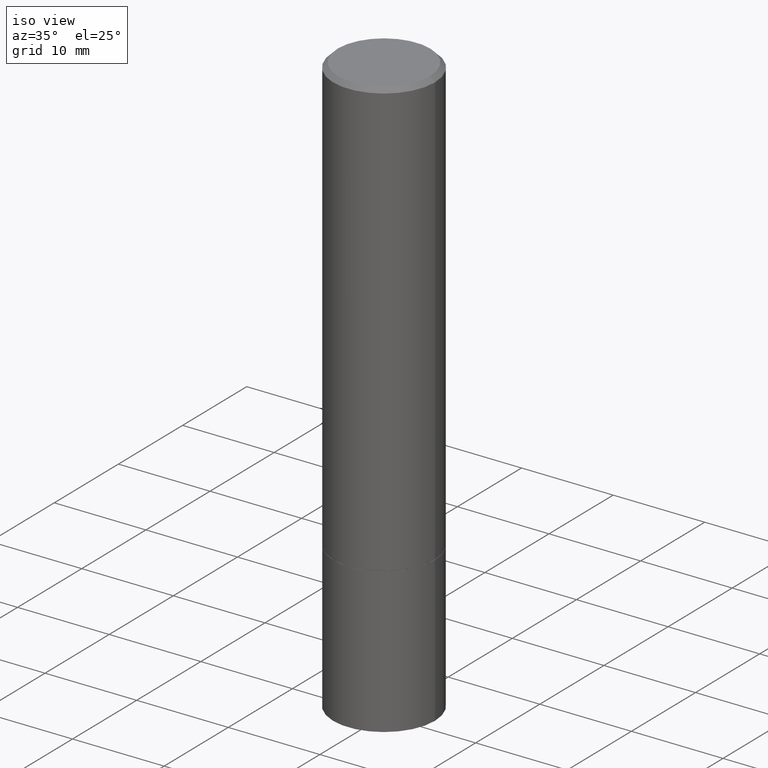
[diagram: clean part render]
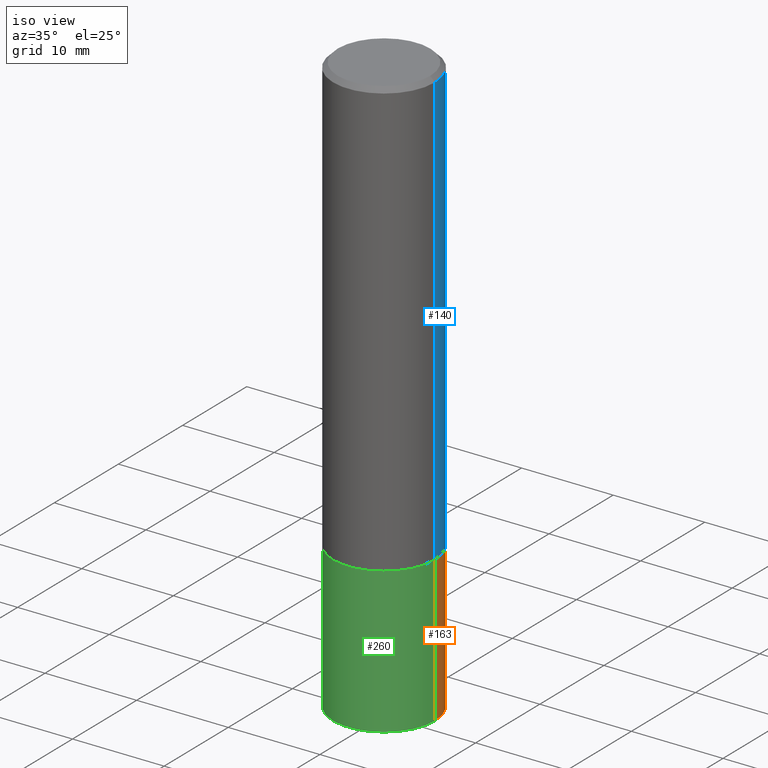
[diagram: same view with three faces highlighted in distinct colors, each labeled with its STEP entity id]
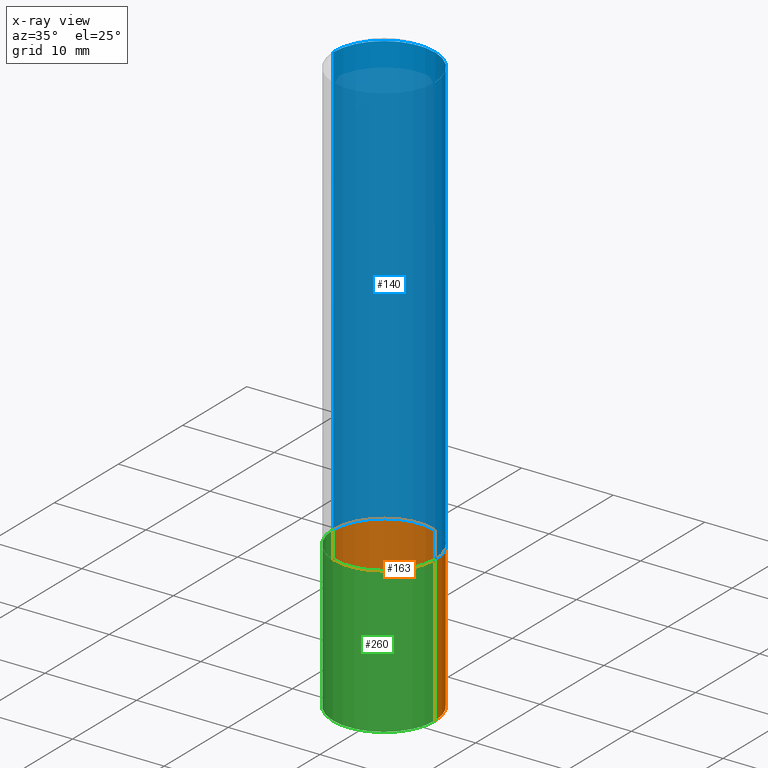
[diagram: x-ray of the same camera — body ghosted, the three highlighted faces saturated]
A machine part, iso view with three faces highlighted in distinct colors.
The next image is the same camera in x-ray (body ghosted, the three faces saturated) — at least one of them is partly hidden behind the body in this view.
Their STEP definitions:

[orange] entity #163 — the highlighted cylindrical surface (partial cylindrical patch) has radius 5.5562 mm, axis along (-0, 0, 1).
#11 = ORIENTED_EDGE ( 'NONE', *, *, #312, .F. ) ;
#15 = CIRCLE ( 'NONE', #309, 0.2187500000000000000 ) ;
#20 = EDGE_CURVE ( 'NONE', #350, #247, #361, .T. ) ;
#32 = EDGE_CURVE ( 'NONE', #320, #100, #130, .T. ) ;
#39 = CARTESIAN_POINT ( 'NONE',  ( 0.2187500000000000000, -1.025622643285173500E-14, -2.500000000000000000 ) ) ;
#46 = ORIENTED_EDGE ( 'NONE', *, *, #151, .T. ) ;
#57 = CYLINDRICAL_SURFACE ( 'NONE', #289, 0.2187500000000000000 ) ;
#58 = CARTESIAN_POINT ( 'NONE',  ( 0.000000000000000000, 0.000000000000000000, 0.000000000000000000 ) ) ;
#62 = CARTESIAN_POINT ( 'NONE',  ( 4.585254011597131119E-29, -6.546527510330898707E-15, -1.875000000000000000 ) ) ;
#65 = VECTOR ( 'NONE', #166, 39.37007874015748143 ) ;
#74 = CARTESIAN_POINT ( 'NONE',  ( 0.2187500000000000000, -1.527523085743870843E-15, 1.066663669705360885E-29 ) ) ;
#75 = ORIENTED_EDGE ( 'NONE', *, *, #20, .F. ) ;
#80 = DIRECTION ( 'NONE',  ( 1.000000000000000000, -6.982962677686266711E-15, 4.876176775795935232E-29 ) ) ;
#97 = VECTOR ( 'NONE', #161, 39.37007874015748143 ) ;
#100 = VERTEX_POINT ( 'NONE', #221 ) ;
#130 = LINE ( 'NONE', #326, #65 ) ;
#148 = AXIS2_PLACEMENT_3D ( 'NONE', #62, #196, #344 ) ;
#151 = EDGE_CURVE ( 'NONE', #350, #320, #15, .T. ) ;
#161 = DIRECTION ( 'NONE',  ( -2.445468806185136877E-29, 3.491481338843145188E-15, 1.000000000000000000 ) ) ;
#163 = ADVANCED_FACE ( 'NONE', ( #224 ), #57, .T. ) ;
#166 = DIRECTION ( 'NONE',  ( -2.445468806185136877E-29, 3.491481338843145188E-15, 1.000000000000000000 ) ) ;
#195 = CIRCLE ( 'NONE', #148, 0.2187500000000000000 ) ;
#196 = DIRECTION ( 'NONE',  ( -2.445468806185136597E-29, 3.491481338843145583E-15, 1.000000000000000000 ) ) ;
#200 = DIRECTION ( 'NONE',  ( -2.445468806185136597E-29, 3.491481338843145583E-15, 1.000000000000000000 ) ) ;
#221 = CARTESIAN_POINT ( 'NONE',  ( -0.2187500000000000000, -6.083303194244162668E-15, -1.875000000000000000 ) ) ;
#224 = FACE_OUTER_BOUND ( 'NONE', #241, .T. ) ;
#241 = EDGE_LOOP ( 'NONE', ( #46, #265, #11, #75 ) ) ;
#247 = VERTEX_POINT ( 'NONE', #281 ) ;
#265 = ORIENTED_EDGE ( 'NONE', *, *, #32, .T. ) ;
#281 = CARTESIAN_POINT ( 'NONE',  ( 0.2187500000000000000, -8.074050596074770339E-15, -1.875000000000000000 ) ) ;
#289 = AXIS2_PLACEMENT_3D ( 'NONE', #58, #335, #80 ) ;
#299 = CARTESIAN_POINT ( 'NONE',  ( 6.113672015462842613E-29, -8.728703347107864943E-15, -2.500000000000000000 ) ) ;
#307 = DIRECTION ( 'NONE',  ( 1.000000000000000000, -6.982962677686267499E-15, 0.000000000000000000 ) ) ;
#309 = AXIS2_PLACEMENT_3D ( 'NONE', #299, #200, #307 ) ;
#312 = EDGE_CURVE ( 'NONE', #247, #100, #195, .T. ) ;
#317 = CARTESIAN_POINT ( 'NONE',  ( -0.2187500000000000000, -6.083303194244162668E-15, -2.500000000000000000 ) ) ;
#320 = VERTEX_POINT ( 'NONE', #317 ) ;
#326 = CARTESIAN_POINT ( 'NONE',  ( -0.2187500000000000000, 1.554312234475219157E-15, -1.076017050993260622E-29 ) ) ;
#335 = DIRECTION ( 'NONE',  ( -2.445468806185136597E-29, 3.491481338843145583E-15, 1.000000000000000000 ) ) ;
#344 = DIRECTION ( 'NONE',  ( 1.000000000000000000, -6.982962677686267499E-15, 0.000000000000000000 ) ) ;
#350 = VERTEX_POINT ( 'NONE', #39 ) ;
#361 = LINE ( 'NONE', #74, #97 ) ;

[blue] entity #140 — the highlighted cylindrical surface (partial cylindrical patch) has radius 5.5562 mm, axis along (-0, 0, 1).
#17 = EDGE_LOOP ( 'NONE', ( #101, #233, #216, #96 ) ) ;
#44 = VERTEX_POINT ( 'NONE', #277 ) ;
#53 = CYLINDRICAL_SURFACE ( 'NONE', #283, 0.2187499999999998057 ) ;
#54 = DIRECTION ( 'NONE',  ( -2.445468806185136597E-29, 3.491481338843145583E-15, 1.000000000000000000 ) ) ;
#86 = DIRECTION ( 'NONE',  ( -2.445468806185136597E-29, 3.491481338843145583E-15, 1.000000000000000000 ) ) ;
#87 = EDGE_CURVE ( 'NONE', #105, #136, #304, .T. ) ;
#96 = ORIENTED_EDGE ( 'NONE', *, *, #87, .F. ) ;
#101 = ORIENTED_EDGE ( 'NONE', *, *, #296, .T. ) ;
#105 = VERTEX_POINT ( 'NONE', #185 ) ;
#113 = DIRECTION ( 'NONE',  ( -2.445468806185136597E-29, 3.491481338843145583E-15, 1.000000000000000000 ) ) ;
#120 = DIRECTION ( 'NONE',  ( -2.445468806185136877E-29, 3.491481338843145188E-15, 1.000000000000000000 ) ) ;
#122 = LINE ( 'NONE', #293, #321 ) ;
#133 = DIRECTION ( 'NONE',  ( 1.000000000000000000, -6.982962677686266711E-15, 4.876176775795936353E-29 ) ) ;
#136 = VERTEX_POINT ( 'NONE', #191 ) ;
#137 = VERTEX_POINT ( 'NONE', #303 ) ;
#138 = CARTESIAN_POINT ( 'NONE',  ( 4.582808542790945516E-29, -6.543036028992054911E-15, -1.874000000000000110 ) ) ;
#140 = ADVANCED_FACE ( 'NONE', ( #305 ), #53, .T. ) ;
#164 = CARTESIAN_POINT ( 'NONE',  ( 0.000000000000000000, 0.000000000000000000, 0.000000000000000000 ) ) ;
#185 = CARTESIAN_POINT ( 'NONE',  ( 0.2187499999999999445, -8.070559114735925754E-15, -1.874000000000000110 ) ) ;
#188 = AXIS2_PLACEMENT_3D ( 'NONE', #258, #113, #230 ) ;
#191 = CARTESIAN_POINT ( 'NONE',  ( 0.2187499999999997224, -1.570563563789383461E-15, -0.02000000000000005246 ) ) ;
#203 = DIRECTION ( 'NONE',  ( 1.000000000000000000, -6.982962677686269077E-15, 0.000000000000000000 ) ) ;
#216 = ORIENTED_EDGE ( 'NONE', *, *, #279, .F. ) ;
#230 = DIRECTION ( 'NONE',  ( 1.000000000000000000, -6.982962677686266711E-15, 0.000000000000000000 ) ) ;
#233 = ORIENTED_EDGE ( 'NONE', *, *, #360, .T. ) ;
#245 = DIRECTION ( 'NONE',  ( -2.445468806185136877E-29, 3.491481338843145188E-15, 1.000000000000000000 ) ) ;
#258 = CARTESIAN_POINT ( 'NONE',  ( 4.890937612370285420E-31, -6.982962677686308865E-17, -0.02000000000000005246 ) ) ;
#259 = AXIS2_PLACEMENT_3D ( 'NONE', #138, #86, #203 ) ;
#272 = CIRCLE ( 'NONE', #259, 0.2187499999999999445 ) ;
#277 = CARTESIAN_POINT ( 'NONE',  ( -0.2187499999999997224, 1.457693458967005770E-15, -0.02000000000000005246 ) ) ;
#279 = EDGE_CURVE ( 'NONE', #136, #44, #310, .T. ) ;
#280 = CARTESIAN_POINT ( 'NONE',  ( 0.2187499999999998057, -1.527523085743869462E-15, 1.066663669705360184E-29 ) ) ;
#283 = AXIS2_PLACEMENT_3D ( 'NONE', #164, #54, #133 ) ;
#293 = CARTESIAN_POINT ( 'NONE',  ( -0.2187499999999998057, 1.554312234475217776E-15, -1.076017050993259781E-29 ) ) ;
#296 = EDGE_CURVE ( 'NONE', #105, #137, #272, .T. ) ;
#303 = CARTESIAN_POINT ( 'NONE',  ( -0.2187499999999999445, -1.752120593409238962E-15, -1.874000000000000110 ) ) ;
#304 = LINE ( 'NONE', #280, #346 ) ;
#305 = FACE_OUTER_BOUND ( 'NONE', #17, .T. ) ;
#310 = CIRCLE ( 'NONE', #188, 0.2187499999999997224 ) ;
#321 = VECTOR ( 'NONE', #120, 39.37007874015748143 ) ;
#346 = VECTOR ( 'NONE', #245, 39.37007874015748143 ) ;
#360 = EDGE_CURVE ( 'NONE', #137, #44, #122, .T. ) ;

[green] entity #260 — the highlighted cylindrical surface (partial cylindrical patch) has radius 5.5562 mm, axis along (-0, 0, 1).
#1 = CARTESIAN_POINT ( 'NONE',  ( 4.585254011597131119E-29, -6.546527510330898707E-15, -1.875000000000000000 ) ) ;
#5 = AXIS2_PLACEMENT_3D ( 'NONE', #1, #143, #146 ) ;
#20 = EDGE_CURVE ( 'NONE', #350, #247, #361, .T. ) ;
#32 = EDGE_CURVE ( 'NONE', #320, #100, #130, .T. ) ;
#33 = DIRECTION ( 'NONE',  ( 1.000000000000000000, -6.982962677686267499E-15, 0.000000000000000000 ) ) ;
#38 = EDGE_LOOP ( 'NONE', ( #251, #123, #115, #262 ) ) ;
#39 = CARTESIAN_POINT ( 'NONE',  ( 0.2187500000000000000, -1.025622643285173500E-14, -2.500000000000000000 ) ) ;
#41 = AXIS2_PLACEMENT_3D ( 'NONE', #82, #56, #33 ) ;
#49 = CIRCLE ( 'NONE', #5, 0.2187500000000000000 ) ;
#56 = DIRECTION ( 'NONE',  ( -2.445468806185136597E-29, 3.491481338843145583E-15, 1.000000000000000000 ) ) ;
#61 = CYLINDRICAL_SURFACE ( 'NONE', #290, 0.2187500000000000000 ) ;
#65 = VECTOR ( 'NONE', #166, 39.37007874015748143 ) ;
#70 = CIRCLE ( 'NONE', #41, 0.2187500000000000000 ) ;
#74 = CARTESIAN_POINT ( 'NONE',  ( 0.2187500000000000000, -1.527523085743870843E-15, 1.066663669705360885E-29 ) ) ;
#82 = CARTESIAN_POINT ( 'NONE',  ( 6.113672015462842613E-29, -8.728703347107864943E-15, -2.500000000000000000 ) ) ;
#97 = VECTOR ( 'NONE', #161, 39.37007874015748143 ) ;
#100 = VERTEX_POINT ( 'NONE', #221 ) ;
#115 = ORIENTED_EDGE ( 'NONE', *, *, #20, .T. ) ;
#123 = ORIENTED_EDGE ( 'NONE', *, *, #208, .T. ) ;
#130 = LINE ( 'NONE', #326, #65 ) ;
#143 = DIRECTION ( 'NONE',  ( -2.445468806185136597E-29, 3.491481338843145583E-15, 1.000000000000000000 ) ) ;
#146 = DIRECTION ( 'NONE',  ( 1.000000000000000000, -6.982962677686267499E-15, 0.000000000000000000 ) ) ;
#161 = DIRECTION ( 'NONE',  ( -2.445468806185136877E-29, 3.491481338843145188E-15, 1.000000000000000000 ) ) ;
#166 = DIRECTION ( 'NONE',  ( -2.445468806185136877E-29, 3.491481338843145188E-15, 1.000000000000000000 ) ) ;
#171 = CARTESIAN_POINT ( 'NONE',  ( 0.000000000000000000, 0.000000000000000000, 0.000000000000000000 ) ) ;
#197 = EDGE_CURVE ( 'NONE', #100, #247, #49, .T. ) ;
#208 = EDGE_CURVE ( 'NONE', #320, #350, #70, .T. ) ;
#221 = CARTESIAN_POINT ( 'NONE',  ( -0.2187500000000000000, -6.083303194244162668E-15, -1.875000000000000000 ) ) ;
#247 = VERTEX_POINT ( 'NONE', #281 ) ;
#251 = ORIENTED_EDGE ( 'NONE', *, *, #32, .F. ) ;
#260 = ADVANCED_FACE ( 'NONE', ( #311 ), #61, .T. ) ;
#262 = ORIENTED_EDGE ( 'NONE', *, *, #197, .F. ) ;
#281 = CARTESIAN_POINT ( 'NONE',  ( 0.2187500000000000000, -8.074050596074770339E-15, -1.875000000000000000 ) ) ;
#286 = DIRECTION ( 'NONE',  ( 1.000000000000000000, -6.982962677686266711E-15, 4.876176775795935232E-29 ) ) ;
#290 = AXIS2_PLACEMENT_3D ( 'NONE', #171, #313, #286 ) ;
#311 = FACE_OUTER_BOUND ( 'NONE', #38, .T. ) ;
#313 = DIRECTION ( 'NONE',  ( -2.445468806185136597E-29, 3.491481338843145583E-15, 1.000000000000000000 ) ) ;
#317 = CARTESIAN_POINT ( 'NONE',  ( -0.2187500000000000000, -6.083303194244162668E-15, -2.500000000000000000 ) ) ;
#320 = VERTEX_POINT ( 'NONE', #317 ) ;
#326 = CARTESIAN_POINT ( 'NONE',  ( -0.2187500000000000000, 1.554312234475219157E-15, -1.076017050993260622E-29 ) ) ;
#350 = VERTEX_POINT ( 'NONE', #39 ) ;
#361 = LINE ( 'NONE', #74, #97 ) ;